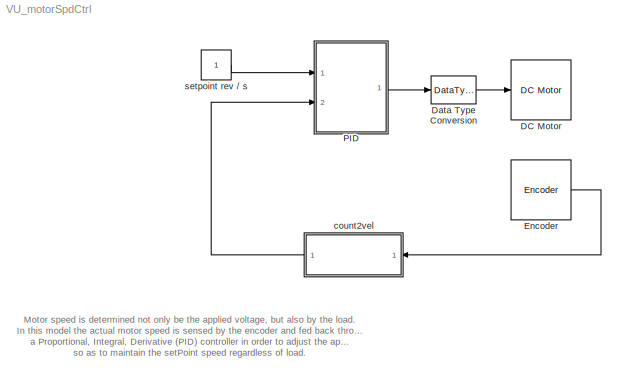
MODEL VU_motorSpdCtrl
KIND model
BLOCK [Reference] DC Motor  REF=lego_nxt_lib/DC Motor  (lib defined in mdl_3d9a4c0387f8)
  Ports = [1]
  SID = 25
  SourceBlock = lego_nxt_lib/DC Motor
  SourceType = Servo Motor (Simple)
  brake = Coast
  port = Port C
BLOCK [DataTypeConversion] Data Type Conversion
  OutDataType = sfix(16)
  OutDataTypeMode = int8
  OutDataTypeStr = int8
  OutScaling = 2^0
  RndMeth = Floor
  SID = 1
BLOCK [Reference] Encoder  REF=lego_nxt_lib/Encoder  (lib defined in mdl_3d9a4c0387f8)
  Ports = [0, 1]
  SID = 24
  SourceBlock = lego_nxt_lib/Encoder
  SourceType = Encoder
  port = Port C
  st = 0.05
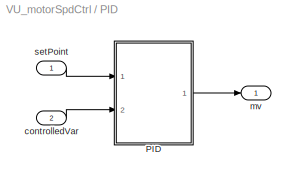
BLOCK [SubSystem] PID
  FunctionWithSeparateData = off
  MaskCallbackString = ||||
  MaskEnableString = on,on,on,on,on
  MaskHideContents = off
  MaskIconFrame = on
  MaskIconOpaque = on
  MaskIconRotate = none
  MaskIconUnits = autoscale
  MaskPortRotate = default
  MaskPromptString = Proportional gain:|Integral time:|Derivative time:|Max manipulated output Limit:|Min manipulated output Limit:
  MaskStyleString = edit,edit,edit,edit,edit
  MaskToolTipString = on,on,on,on,on
  MaskTunableValueString = on,on,on,on,on
  MaskValueString = 5.5|1.5|0|100|-100
  MaskVariables = Kc=@1;Ti=@2;Td=@3;mvMax=@4;mvMin=@5;
  MaskVisibilityString = on,on,on,on,on
  MinAlgLoopOccurrences = off
  Opaque = off
  Ports = [2, 1]
  PropExecContextOutsideSubsystem = off
  RTWSystemCode = Auto
  RequestExecContextInheritance = off
  SID = 2
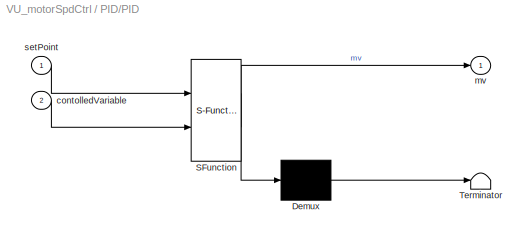
BLOCK [SubSystem] PID/PID
  FunctionWithSeparateData = off
  MaskDescription = Embedded MATLAB block
  MaskDisplay = disp('PID');
  MaskHideContents = off
  MaskIconFrame = on
  MaskIconOpaque = off
  MaskIconRotate = none
  MaskIconUnits = autoscale
  MaskPortRotate = default
  MaskSelfModifiable = on
  MaskType = Stateflow
  MinAlgLoopOccurrences = off
  Opaque = off
  PermitHierarchicalResolution = ExplicitOnly
  Ports = [2, 1]
  PropExecContextOutsideSubsystem = off
  RTWSystemCode = Auto
  RequestExecContextInheritance = off
  SID = 7
  TreatAsAtomicUnit = on
BLOCK [Demux] PID/PID/ Demux 
  Outputs = 1
  Ports = [1, 1]
  SID = 10
BLOCK [S-Function] PID/PID/ SFunction 
  EnableBusSupport = on
  FunctionName = sf_sfun
  Parameters = Kc,Td,Ti,mvMax,mvMin
  PortCounts = [2 2]
  Ports = [2, 2]
  SID = 9
  Tag = Stateflow S-Function VU_motorSpdCtrl 2
BLOCK [Terminator] PID/PID/ Terminator 
  SID = 12
BLOCK [Inport] PID/PID/contolledVariable
  IconDisplay = Port number
  OutDataType = sfix(16)
  OutScaling = 2^0
  Port = 2
  SID = 2
BLOCK [Outport] PID/PID/mv
  IconDisplay = Port number
  OutDataType = sfix(16)
  OutScaling = 2^0
  SID = 8
BLOCK [Inport] PID/PID/setPoint
  IconDisplay = Port number
  OutDataType = sfix(16)
  OutScaling = 2^0
  SID = 1
BLOCK [Inport] PID/controlledVar
  IconDisplay = Port number
  OutDataType = sfix(16)
  OutScaling = 2^0
  Port = 2
  SID = 4
BLOCK [Outport] PID/mv
  IconDisplay = Port number
  OutDataType = sfix(16)
  OutScaling = 2^0
  SID = 8
BLOCK [Inport] PID/setPoint
  IconDisplay = Port number
  OutDataType = sfix(16)
  OutScaling = 2^0
  SID = 3
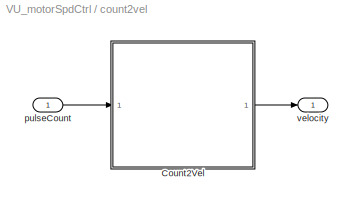
BLOCK [SubSystem] count2vel
  FunctionWithSeparateData = off
  MaskDescription = Use gainFactor to define units of the result:\nIf gainFactor=1, => units of velocity= (pulses/sample).\nThe encoders give 360 pulses / revolution of the output shaft\n\nExample:  To obtain velocity in rev/sec\nvelocity = (pulses/sample) * (samples/sec) * (rev/pulses) = rev/sec\nGiven a sample period T=0.1, and the known 360 pulses per rev...\n=> gainFactor = (1/0.1) * (1/360) = 1/36\n\nNot clear w...<+44ch>
  MaskEnableString = on
  MaskHideContents = off
  MaskIconFrame = on
  MaskIconOpaque = on
  MaskIconRotate = none
  MaskIconUnits = autoscale
  MaskPortRotate = default
  MaskPromptString = Gain Factor:
  MaskStyleString = edit
  MaskToolTipString = on
  MaskTunableValueString = on
  MaskType = count2vel
  MaskValueString = 1/0.05*1/360
  MaskVariables = gainFactor=@1;
  MaskVisibilityString = on
  MinAlgLoopOccurrences = off
  Opaque = off
  Ports = [1, 1]
  PropExecContextOutsideSubsystem = off
  RTWSystemCode = Auto
  RequestExecContextInheritance = off
  SID = 15
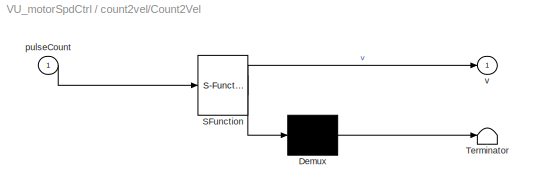
BLOCK [SubSystem] count2vel/Count2Vel
  FunctionWithSeparateData = off
  MaskDescription = Embedded MATLAB block
  MaskDisplay = disp('velocity');
  MaskHideContents = off
  MaskIconFrame = on
  MaskIconOpaque = off
  MaskIconRotate = none
  MaskIconUnits = autoscale
  MaskPortRotate = default
  MaskSelfModifiable = on
  MaskType = Stateflow
  MinAlgLoopOccurrences = off
  Opaque = off
  PermitHierarchicalResolution = ExplicitOnly
  Ports = [1, 1]
  PropExecContextOutsideSubsystem = off
  RTWSystemCode = Auto
  RequestExecContextInheritance = off
  SID = 17
  TreatAsAtomicUnit = on
BLOCK [Demux] count2vel/Count2Vel/ Demux 
  Outputs = 1
  Ports = [1, 1]
  SID = 7
BLOCK [S-Function] count2vel/Count2Vel/ SFunction 
  EnableBusSupport = on
  FunctionName = sf_sfun
  Parameters = gainFactor
  PortCounts = [1 2]
  Ports = [1, 2]
  SID = 6
  Tag = Stateflow S-Function VU_motorSpdCtrl 14
BLOCK [Terminator] count2vel/Count2Vel/ Terminator 
  SID = 9
BLOCK [Inport] count2vel/Count2Vel/pulseCount
  IconDisplay = Port number
  OutDataType = sfix(16)
  OutScaling = 2^0
  SID = 1
BLOCK [Outport] count2vel/Count2Vel/v
  IconDisplay = Port number
  OutDataType = sfix(16)
  OutScaling = 2^0
  SID = 5
BLOCK [Inport] count2vel/pulseCount
  IconDisplay = Port number
  OutDataType = sfix(16)
  OutScaling = 2^0
  SID = 16
BLOCK [Outport] count2vel/velocity
  IconDisplay = Port number
  OutDataType = sfix(16)
  OutScaling = 2^0
  SID = 18
BLOCK [Constant] setpoint rev // s
  OutDataType = fixdt(1, 16)
  OutScaling = 2^0
  SID = 13
ANNOTATION (root): Motor speed is determined not only be the applied voltage, but also by the load.\nIn this model the actual motor speed is sensed by the encoder and fed back through\na Proportional, Integral, Derivative (PID) controller in order to adjust the applied voltage \nso as to maintain the setPoint speed regardless of load.
LINE Data Type Conversion:1 -> DC Motor:1
LINE Encoder:1 -> count2vel:1
LINE PID/PID/ Demux :1 -> PID/PID/ Terminator :1
LINE PID/PID/ SFunction :1 -> PID/PID/ Demux :1
LINE PID/PID/ SFunction :2 -> PID/PID/mv:1
LINE PID/PID/contolledVariable:1 -> PID/PID/ SFunction :2
LINE PID/PID/setPoint:1 -> PID/PID/ SFunction :1
LINE PID/PID:1 -> PID/mv:1
LINE PID/controlledVar:1 -> PID/PID:2
LINE PID/setPoint:1 -> PID/PID:1
LINE PID:1 -> Data Type Conversion:1
LINE count2vel/Count2Vel/ Demux :1 -> count2vel/Count2Vel/ Terminator :1
LINE count2vel/Count2Vel/ SFunction :1 -> count2vel/Count2Vel/ Demux :1
LINE count2vel/Count2Vel/ SFunction :2 -> count2vel/Count2Vel/v:1
LINE count2vel/Count2Vel/pulseCount:1 -> count2vel/Count2Vel/ SFunction :1
LINE count2vel/Count2Vel:1 -> count2vel/velocity:1
LINE count2vel/pulseCount:1 -> count2vel/Count2Vel:1
LINE count2vel:1 -> PID:2
LINE setpoint rev // s:1 -> PID:1
CHART PID/PID states=1 transitions=1
  STATE_LABEL 'eML_blk_kernel()'
CHART count2vel/Count2Vel states=1 transitions=1
  STATE_LABEL 'eML_blk_kernel()'
